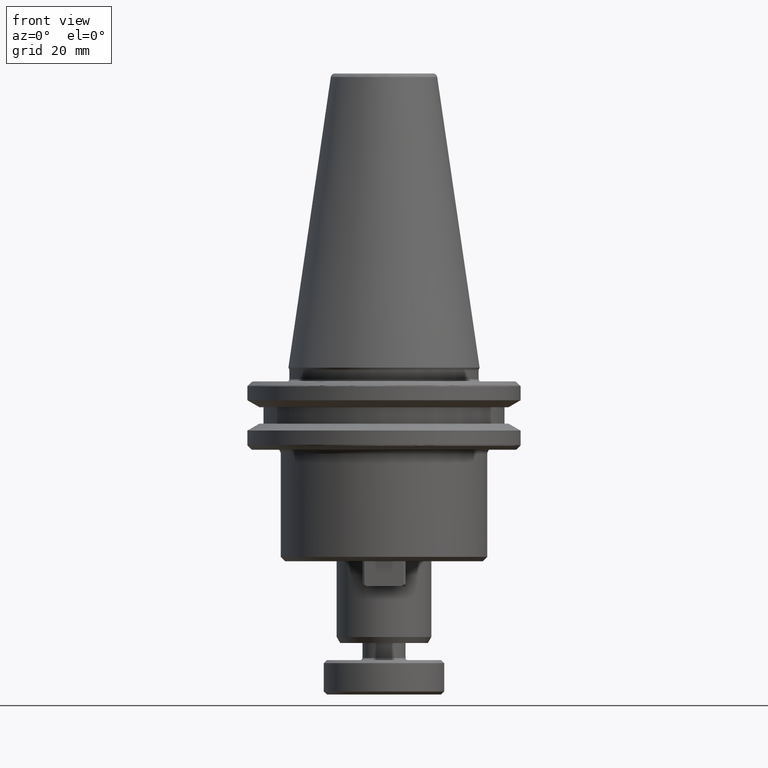
[diagram: clean part render]
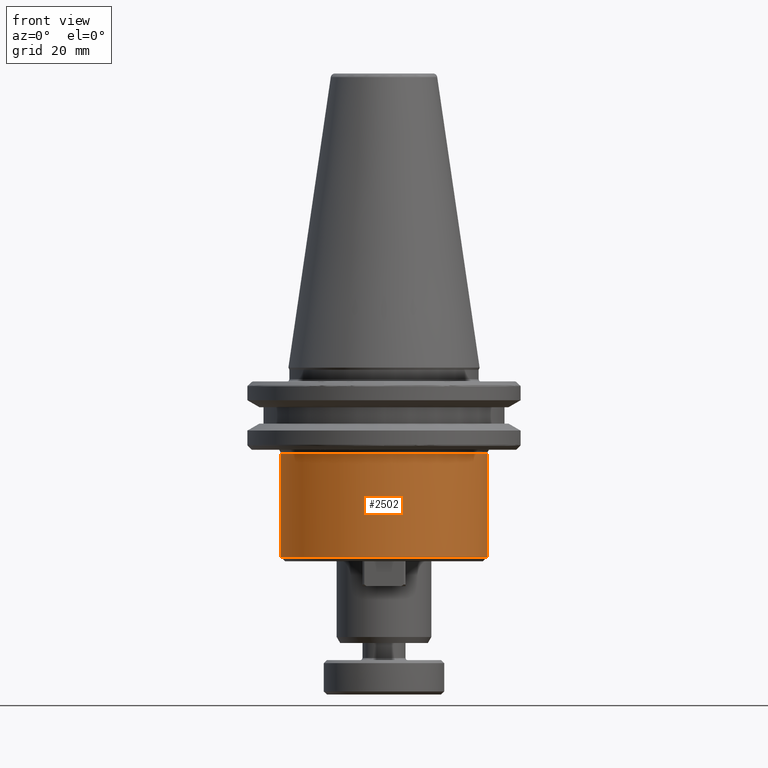
[diagram: same view with one face highlighted and labeled with its STEP entity id]
A machine part, front view. The second image highlights one B-rep face of the part: STEP entity #2502.
In plain terms, the highlighted cylindrical surface (partial cylindrical patch) has radius 24 mm, axis along (0, 0, 1).
Its self-contained STEP definition (entity closure, byte-faithful):
#23 = ORIENTED_EDGE ( 'NONE', *, *, #539, .T. ) ;
#113 = DIRECTION ( 'NONE',  ( 0.0000000000000000000, 0.0000000000000000000, 1.000000000000000000 ) ) ;
#157 = CARTESIAN_POINT ( 'NONE',  ( 22.74515961371467700, -7.658832427115894100, -19.98284271247460700 ) ) ;
#228 = DIRECTION ( 'NONE',  ( -0.0000000000000000000, -1.224646799147353200E-016, 1.000000000000000000 ) ) ;
#250 = CYLINDRICAL_SURFACE ( 'NONE', #2109, 24.00000000000000000 ) ;
#309 = DIRECTION ( 'NONE',  ( 0.0000000000000000000, 0.0000000000000000000, 1.000000000000000000 ) ) ;
#389 = EDGE_LOOP ( 'NONE', ( #2995, #3389, #23, #1138, #3245 ) ) ;
#539 = EDGE_CURVE ( 'NONE', #1013, #1970, #2527, .T. ) ;
#639 = DIRECTION ( 'NONE',  ( 0.0000000000000000000, 0.0000000000000000000, 1.000000000000000000 ) ) ;
#679 = AXIS2_PLACEMENT_3D ( 'NONE', #2127, #228, #2439 ) ;
#765 = DIRECTION ( 'NONE',  ( 1.000000000000000000, 0.0000000000000000000, 0.0000000000000000000 ) ) ;
#817 = EDGE_CURVE ( 'NONE', #3098, #1013, #3435, .T. ) ;
#829 = CARTESIAN_POINT ( 'NONE',  ( 0.0000000000000000000, 0.0000000000000000000, -19.98284271247460700 ) ) ;
#870 = EDGE_CURVE ( 'NONE', #3098, #2845, #2385, .T. ) ;
#962 = DIRECTION ( 'NONE',  ( 1.000000000000000000, 0.0000000000000000000, 0.0000000000000000000 ) ) ;
#1013 = VERTEX_POINT ( 'NONE', #3634 ) ;
#1138 = ORIENTED_EDGE ( 'NONE', *, *, #3016, .F. ) ;
#1143 = DIRECTION ( 'NONE',  ( 1.000000000000000000, 0.0000000000000000000, 0.0000000000000000000 ) ) ;
#1202 = CARTESIAN_POINT ( 'NONE',  ( -24.00000000000000000, 2.939152317953647900E-015, -44.00000000000001400 ) ) ;
#1656 = EDGE_CURVE ( 'NONE', #2221, #2845, #4148, .T. ) ;
#1704 = AXIS2_PLACEMENT_3D ( 'NONE', #829, #3047, #1143 ) ;
#1905 = AXIS2_PLACEMENT_3D ( 'NONE', #2851, #639, #962 ) ;
#1942 = FACE_OUTER_BOUND ( 'NONE', #389, .T. ) ;
#1970 = VERTEX_POINT ( 'NONE', #3834 ) ;
#2109 = AXIS2_PLACEMENT_3D ( 'NONE', #2650, #113, #765 ) ;
#2127 = CARTESIAN_POINT ( 'NONE',  ( 0.0000000000000000000, 1.274224817299771900E-014, -19.98284271247460700 ) ) ;
#2221 = VERTEX_POINT ( 'NONE', #157 ) ;
#2333 = CIRCLE ( 'NONE', #679, 23.99999999999998600 ) ;
#2385 = LINE ( 'NONE', #2836, #3334 ) ;
#2431 = VECTOR ( 'NONE', #3793, 1000.000000000000000 ) ;
#2439 = DIRECTION ( 'NONE',  ( 0.0000000000000000000, -1.000000000000000000, -1.445602896647340100E-016 ) ) ;
#2502 = ADVANCED_FACE ( 'NONE', ( #1942 ), #250, .T. ) ;
#2527 = LINE ( 'NONE', #2808, #2431 ) ;
#2650 = CARTESIAN_POINT ( 'NONE',  ( 0.0000000000000000000, 0.0000000000000000000, 82.95681253582424100 ) ) ;
#2808 = CARTESIAN_POINT ( 'NONE',  ( 24.00000000000000000, 0.0000000000000000000, 82.95681253582424100 ) ) ;
#2836 = CARTESIAN_POINT ( 'NONE',  ( -24.00000000000000000, 2.939152317953647900E-015, 82.95681253582424100 ) ) ;
#2845 = VERTEX_POINT ( 'NONE', #3557 ) ;
#2851 = CARTESIAN_POINT ( 'NONE',  ( 0.0000000000000000000, 0.0000000000000000000, -44.00000000000001400 ) ) ;
#2995 = ORIENTED_EDGE ( 'NONE', *, *, #870, .F. ) ;
#3016 = EDGE_CURVE ( 'NONE', #2221, #1970, #2333, .T. ) ;
#3047 = DIRECTION ( 'NONE',  ( -0.0000000000000000000, -0.0000000000000000000, -1.000000000000000000 ) ) ;
#3098 = VERTEX_POINT ( 'NONE', #1202 ) ;
#3245 = ORIENTED_EDGE ( 'NONE', *, *, #1656, .T. ) ;
#3334 = VECTOR ( 'NONE', #309, 1000.000000000000000 ) ;
#3389 = ORIENTED_EDGE ( 'NONE', *, *, #817, .T. ) ;
#3435 = CIRCLE ( 'NONE', #1905, 24.00000000000000000 ) ;
#3557 = CARTESIAN_POINT ( 'NONE',  ( -24.00000000000000000, 2.939152317953647900E-015, -19.98284271247460700 ) ) ;
#3634 = CARTESIAN_POINT ( 'NONE',  ( 24.00000000000000000, 0.0000000000000000000, -44.00000000000001400 ) ) ;
#3793 = DIRECTION ( 'NONE',  ( 0.0000000000000000000, 0.0000000000000000000, 1.000000000000000000 ) ) ;
#3834 = CARTESIAN_POINT ( 'NONE',  ( 23.99999999999998600, -1.848892746611746400E-029, -19.98284271247460700 ) ) ;
#4148 = CIRCLE ( 'NONE', #1704, 24.00000000000000000 ) ;